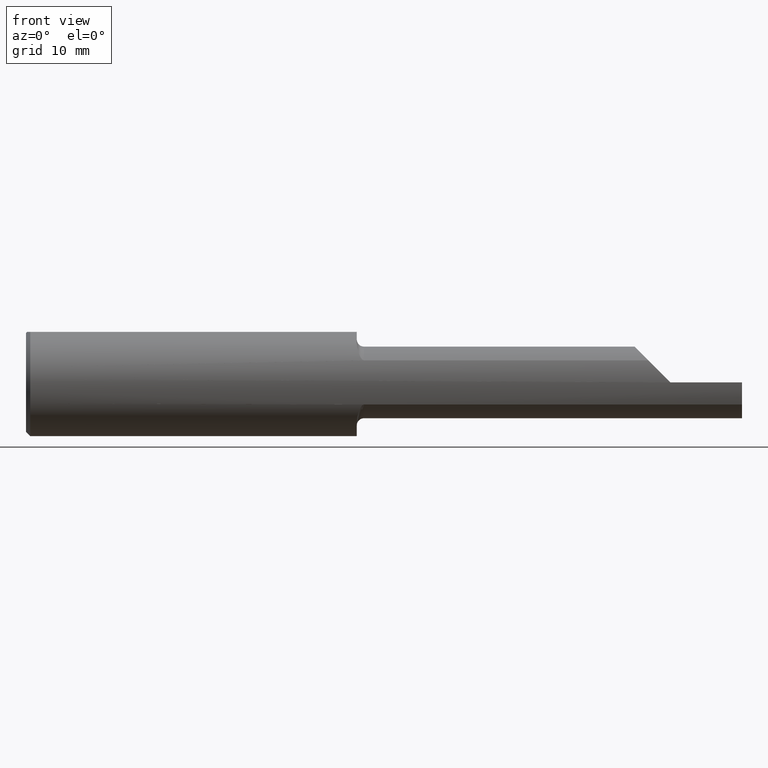
[diagram: clean part render]
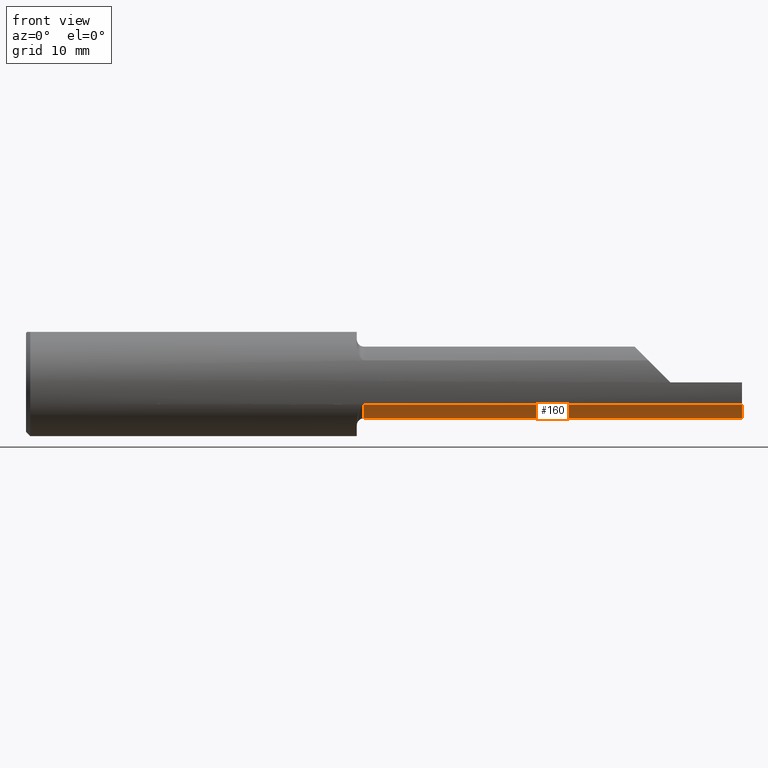
[diagram: same view with one face highlighted and labeled with its STEP entity id]
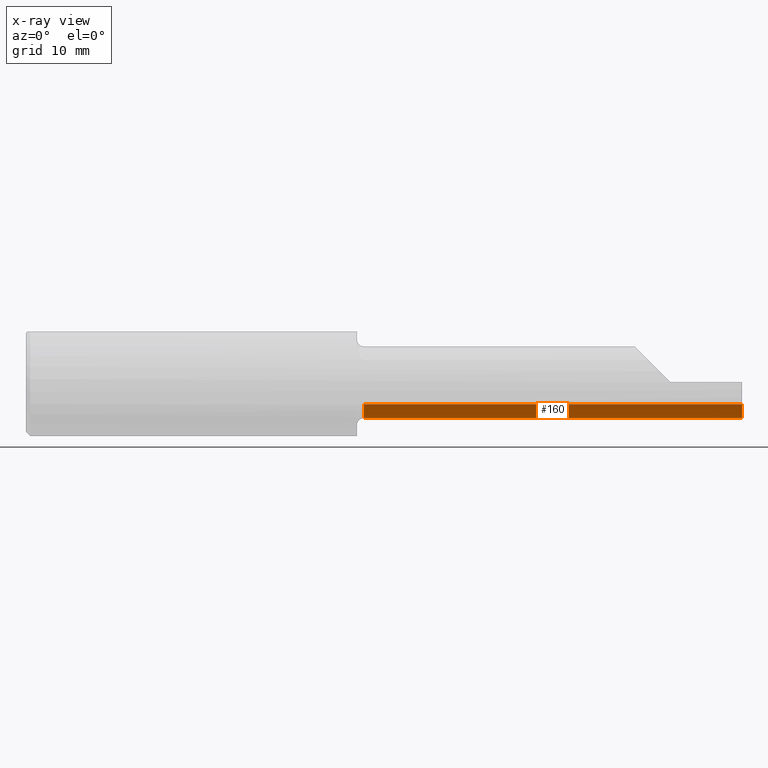
[diagram: x-ray of the same camera — body ghosted, the highlighted face saturated]
A machine part, front view. The second image highlights one B-rep face of the part: STEP entity #160.
The next image is the same camera in x-ray: the body ghosted, the highlighted face saturated — about 0% of this face is hidden behind the body in this view.
In plain terms, the highlighted cylindrical surface (edge-blend (fillet) strip) has radius 3.175 mm, axis along (-1, -0, -0).
Its self-contained STEP definition (entity closure, byte-faithful):
#17 = DIRECTION ( 'NONE',  ( 1.000000000000000000, -0.000000000000000000, -0.000000000000000000 ) ) ;
#34 = ORIENTED_EDGE ( 'NONE', *, *, #502, .F. ) ;
#44 = ORIENTED_EDGE ( 'NONE', *, *, #115, .T. ) ;
#55 = CIRCLE ( 'NONE', #433, 0.1250000000000000000 ) ;
#85 = DIRECTION ( 'NONE',  ( -1.000000000000000000, -0.000000000000000000, -0.000000000000000000 ) ) ;
#96 = DIRECTION ( 'NONE',  ( -1.000000000000000000, -0.000000000000000000, -0.000000000000000000 ) ) ;
#115 = EDGE_CURVE ( 'NONE', #346, #256, #695, .T. ) ;
#120 = VERTEX_POINT ( 'NONE', #169 ) ;
#139 = CARTESIAN_POINT ( 'NONE',  ( 2.500000000000000000, -0.1707639599170698019, -0.07706940050007768384 ) ) ;
#153 = CARTESIAN_POINT ( 'NONE',  ( 1.777500000000000080, -0.1707639599170698019, -0.07706940050007766996 ) ) ;
#160 = ADVANCED_FACE ( 'NONE', ( #240 ), #764, .T. ) ;
#165 = CARTESIAN_POINT ( 'NONE',  ( 2.500000000000000000, -0.07234999999999998377, 0.000000000000000000 ) ) ;
#169 = CARTESIAN_POINT ( 'NONE',  ( 2.418197582037931337, -0.07235000000000001152, -0.1250000000000000000 ) ) ;
#174 = DIRECTION ( 'NONE',  ( 1.000000000000000000, 0.000000000000000000, 0.000000000000000000 ) ) ;
#213 = CARTESIAN_POINT ( 'NONE',  ( 1.180000000000000160, -0.07234999999999996989, -0.1250000000000000000 ) ) ;
#217 = CARTESIAN_POINT ( 'NONE',  ( 2.500000000000000000, -0.07234999999999999765, -0.1249999999999999861 ) ) ;
#236 = EDGE_CURVE ( 'NONE', #256, #698, #828, .T. ) ;
#240 = FACE_OUTER_BOUND ( 'NONE', #624, .T. ) ;
#256 = VERTEX_POINT ( 'NONE', #744 ) ;
#288 = CARTESIAN_POINT ( 'NONE',  ( 2.500000000000000000, -0.07234999999999999765, -0.1249999999999999861 ) ) ;
#346 = VERTEX_POINT ( 'NONE', #139 ) ;
#386 = ORIENTED_EDGE ( 'NONE', *, *, #403, .F. ) ;
#403 = EDGE_CURVE ( 'NONE', #346, #659, #55, .T. ) ;
#420 = AXIS2_PLACEMENT_3D ( 'NONE', #849, #85, #464 ) ;
#433 = AXIS2_PLACEMENT_3D ( 'NONE', #165, #17, #465 ) ;
#438 = LINE ( 'NONE', #217, #483 ) ;
#464 = DIRECTION ( 'NONE',  ( 0.000000000000000000, 0.000000000000000000, 1.000000000000000000 ) ) ;
#465 = DIRECTION ( 'NONE',  ( 0.000000000000000000, 0.000000000000000000, 1.000000000000000000 ) ) ;
#468 = DIRECTION ( 'NONE',  ( -1.000000000000000000, -0.000000000000000000, -0.000000000000000000 ) ) ;
#469 = LINE ( 'NONE', #775, #829 ) ;
#473 = DIRECTION ( 'NONE',  ( 0.000000000000000000, 0.000000000000000000, -1.000000000000000000 ) ) ;
#483 = VECTOR ( 'NONE', #515, 39.37007874015748143 ) ;
#502 = EDGE_CURVE ( 'NONE', #120, #698, #469, .T. ) ;
#505 = ORIENTED_EDGE ( 'NONE', *, *, #236, .T. ) ;
#515 = DIRECTION ( 'NONE',  ( -1.000000000000000000, -0.000000000000000000, -0.000000000000000000 ) ) ;
#525 = AXIS2_PLACEMENT_3D ( 'NONE', #854, #174, #473 ) ;
#624 = EDGE_LOOP ( 'NONE', ( #34, #755, #386, #44, #505 ) ) ;
#659 = VERTEX_POINT ( 'NONE', #288 ) ;
#667 = VECTOR ( 'NONE', #468, 39.37007874015748143 ) ;
#682 = EDGE_CURVE ( 'NONE', #659, #120, #438, .T. ) ;
#695 = LINE ( 'NONE', #153, #667 ) ;
#698 = VERTEX_POINT ( 'NONE', #213 ) ;
#744 = CARTESIAN_POINT ( 'NONE',  ( 1.180000000000000160, -0.1707639599170698019, -0.07706940050007766996 ) ) ;
#755 = ORIENTED_EDGE ( 'NONE', *, *, #682, .F. ) ;
#764 = CYLINDRICAL_SURFACE ( 'NONE', #420, 0.1250000000000000000 ) ;
#775 = CARTESIAN_POINT ( 'NONE',  ( 1.155000000000000027, -0.07234999999999996989, -0.1250000000000000000 ) ) ;
#828 = CIRCLE ( 'NONE', #525, 0.1250000000000000000 ) ;
#829 = VECTOR ( 'NONE', #96, 39.37007874015748143 ) ;
#849 = CARTESIAN_POINT ( 'NONE',  ( 1.155000000000000027, -0.07234999999999998377, 0.000000000000000000 ) ) ;
#854 = CARTESIAN_POINT ( 'NONE',  ( 1.180000000000000160, -0.07234999999999998377, 0.000000000000000000 ) ) ;